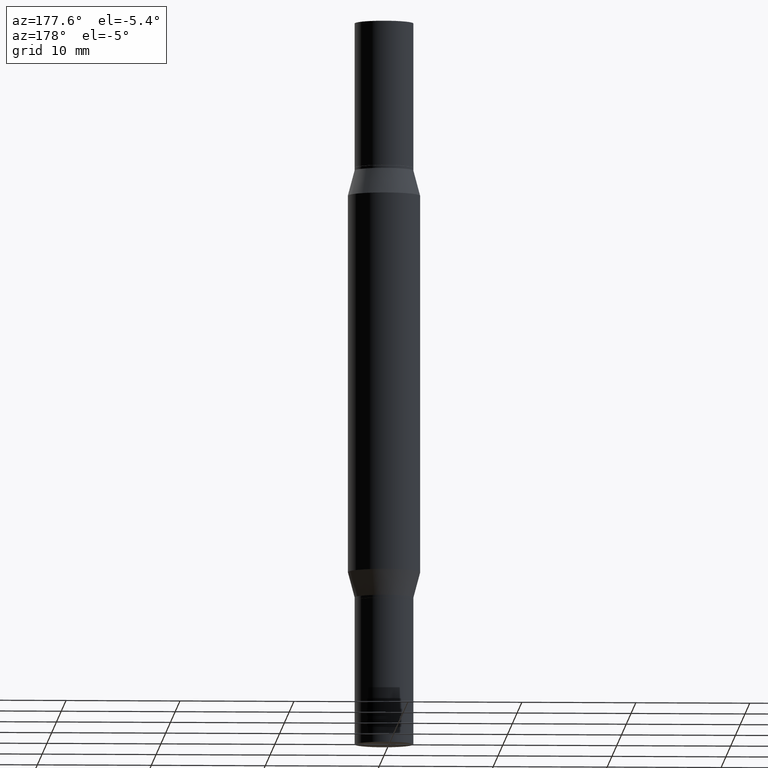
[diagram: clean part render]
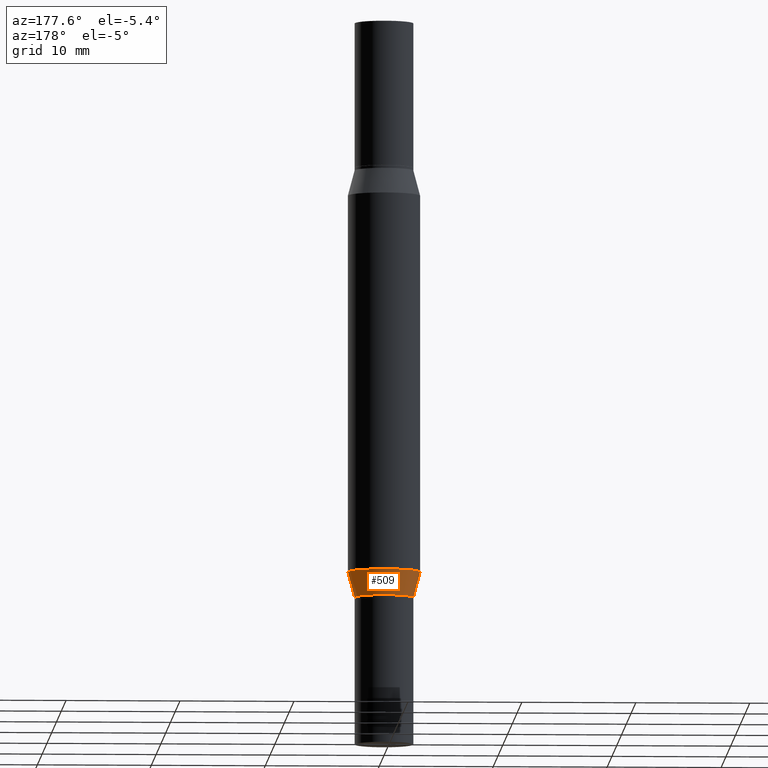
[diagram: same view with one face highlighted and labeled with its STEP entity id]
A machine part, auxiliary view. The second image highlights one B-rep face of the part: STEP entity #509.
In plain terms, the highlighted conical surface has half-angle 15 deg.
Its self-contained STEP definition (entity closure, byte-faithful):
#45 = CARTESIAN_POINT ( 'NONE',  ( 4.866482924308422209E-29, -6.948047864297860305E-15, -1.989999999999999991 ) ) ;
#65 = CIRCLE ( 'NONE', #212, 0.1015499999999997377 ) ;
#80 = ORIENTED_EDGE ( 'NONE', *, *, #865, .F. ) ;
#81 = DIRECTION ( 'NONE',  ( 1.000000000000000000, -6.982962677686263555E-15, 0.000000000000000000 ) ) ;
#85 = LINE ( 'NONE', #601, #960 ) ;
#90 = CIRCLE ( 'NONE', #685, 0.1250000000000000000 ) ;
#121 = ORIENTED_EDGE ( 'NONE', *, *, #758, .T. ) ;
#126 = VECTOR ( 'NONE', #275, 39.37007874015748854 ) ;
#141 = EDGE_LOOP ( 'NONE', ( #615, #121, #80, #920 ) ) ;
#180 = AXIS2_PLACEMENT_3D ( 'NONE', #45, #873, #206 ) ;
#206 = DIRECTION ( 'NONE',  ( 1.000000000000000000, -6.982962677686263555E-15, 0.000000000000000000 ) ) ;
#212 = AXIS2_PLACEMENT_3D ( 'NONE', #525, #298, #81 ) ;
#268 = CARTESIAN_POINT ( 'NONE',  ( -0.1015499999999997377, -6.226491716133479937E-15, -1.989999999999999991 ) ) ;
#275 = DIRECTION ( 'NONE',  ( -0.2588190451025219607, 5.211531920934553408E-15, 0.9659258262890678681 ) ) ;
#298 = DIRECTION ( 'NONE',  ( -2.445468806185136597E-29, 3.491481338843145583E-15, 1.000000000000000000 ) ) ;
#301 = DIRECTION ( 'NONE',  ( -2.445468806185136597E-29, 3.491481338843145583E-15, 1.000000000000000000 ) ) ;
#450 = CARTESIAN_POINT ( 'NONE',  ( 4.652463829924389037E-29, -6.642485318454700807E-15, -1.902483408562509304 ) ) ;
#469 = EDGE_CURVE ( 'NONE', #622, #561, #85, .T. ) ;
#486 = VERTEX_POINT ( 'NONE', #770 ) ;
#509 = ADVANCED_FACE ( 'NONE', ( #712 ), #584, .T. ) ;
#525 = CARTESIAN_POINT ( 'NONE',  ( 4.866482924308422209E-29, -6.948047864297860305E-15, -1.989999999999999991 ) ) ;
#530 = VERTEX_POINT ( 'NONE', #620 ) ;
#561 = VERTEX_POINT ( 'NONE', #752 ) ;
#584 = CONICAL_SURFACE ( 'NONE', #180, 0.1015499999999997377, 0.2617993877991507401 ) ;
#601 = CARTESIAN_POINT ( 'NONE',  ( 0.1015499999999997377, -7.657167724216897932E-15, -1.989999999999999991 ) ) ;
#615 = ORIENTED_EDGE ( 'NONE', *, *, #915, .T. ) ;
#620 = CARTESIAN_POINT ( 'NONE',  ( -0.1250000000000000000, -3.506789423832489448E-15, -1.902483408562509304 ) ) ;
#622 = VERTEX_POINT ( 'NONE', #859 ) ;
#685 = AXIS2_PLACEMENT_3D ( 'NONE', #450, #301, #898 ) ;
#712 = FACE_OUTER_BOUND ( 'NONE', #141, .T. ) ;
#752 = CARTESIAN_POINT ( 'NONE',  ( 0.1250000000000000000, -7.515355653165484935E-15, -1.902483408562509304 ) ) ;
#758 = EDGE_CURVE ( 'NONE', #486, #530, #895, .T. ) ;
#770 = CARTESIAN_POINT ( 'NONE',  ( -0.1015499999999997377, -6.243076252492984615E-15, -1.989999999999999991 ) ) ;
#854 = DIRECTION ( 'NONE',  ( 0.2588190451025219607, 1.565188264969616840E-15, 0.9659258262890678681 ) ) ;
#859 = CARTESIAN_POINT ( 'NONE',  ( 0.1015499999999997377, -7.657167724216897932E-15, -1.989999999999999991 ) ) ;
#865 = EDGE_CURVE ( 'NONE', #561, #530, #90, .T. ) ;
#873 = DIRECTION ( 'NONE',  ( -2.445468806185136597E-29, 3.491481338843145583E-15, 1.000000000000000000 ) ) ;
#895 = LINE ( 'NONE', #268, #126 ) ;
#898 = DIRECTION ( 'NONE',  ( 1.000000000000000000, -6.982962677686270655E-15, 0.000000000000000000 ) ) ;
#915 = EDGE_CURVE ( 'NONE', #622, #486, #65, .T. ) ;
#920 = ORIENTED_EDGE ( 'NONE', *, *, #469, .F. ) ;
#960 = VECTOR ( 'NONE', #854, 39.37007874015748854 ) ;